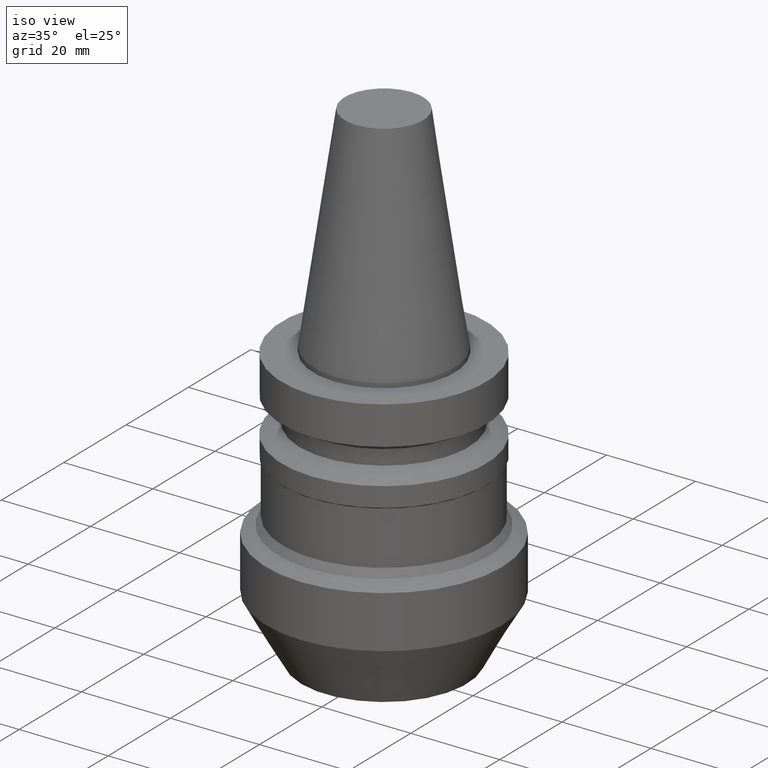
[diagram: clean part render]
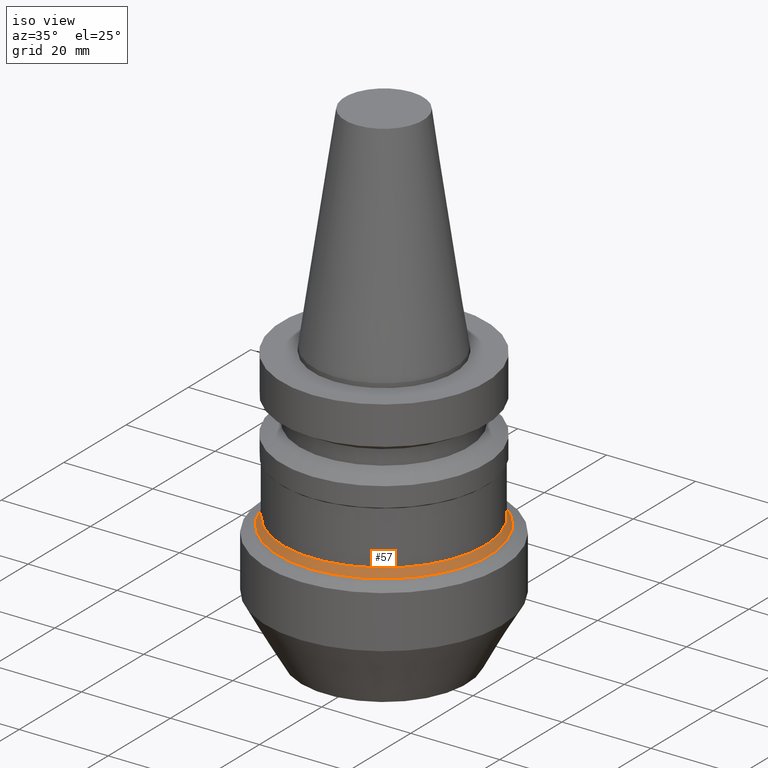
[diagram: same view with one face highlighted and labeled with its STEP entity id]
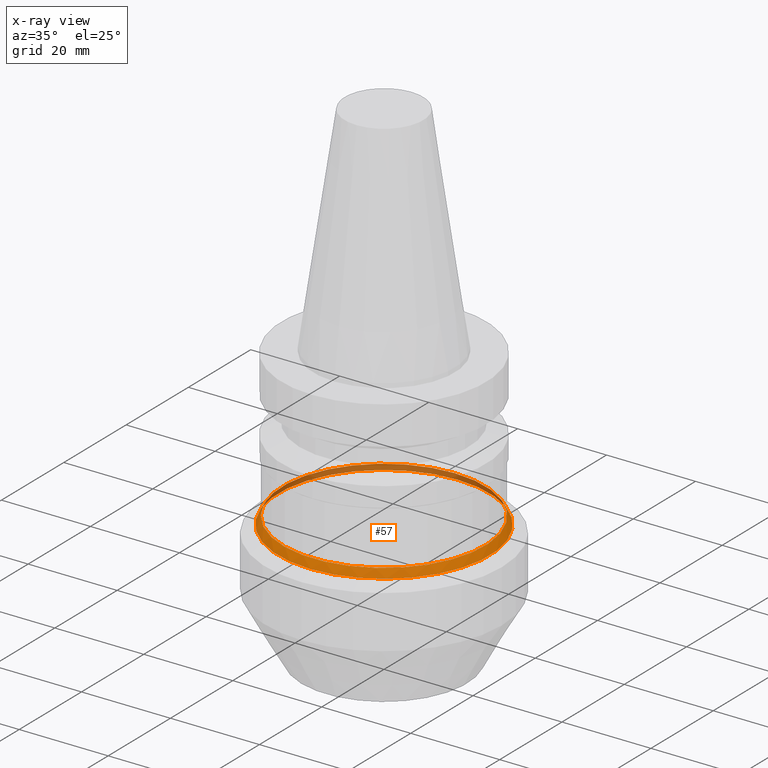
[diagram: x-ray of the same camera — body ghosted, the highlighted face saturated]
A machine part, iso view. The second image highlights one B-rep face of the part: STEP entity #57.
The next image is the same camera in x-ray: the body ghosted, the highlighted face saturated — about 29% of this face is hidden behind the body in this view.
In plain terms, the highlighted conical surface has half-angle 30 deg.
Its self-contained STEP definition (entity closure, byte-faithful):
#57=ADVANCED_FACE('Unnamed[1]',(#154,#155),#156,.T.);
#70=EDGE_CURVE('Unnamed[1]',#175,#175,#176,.T.);
#102=EDGE_CURVE('Unnamed[1]',#224,#224,#225,.T.);
#154=FACE_BOUND('',#287,.T.);
#155=FACE_BOUND('',#288,.T.);
#156=CONICAL_SURFACE('',#289,23.2000000000041,0.52359877559844);
#175=VERTEX_POINT('',#313);
#176=CIRCLE('',#314,22.7000000000041);
#224=VERTEX_POINT('',#374);
#225=CIRCLE('',#375,23.7000000000042);
#287=EDGE_LOOP('',(#443));
#288=EDGE_LOOP('',(#444));
#289=AXIS2_PLACEMENT_3D('',#445,#446,#447);
#313=CARTESIAN_POINT('',(2.10304305257173E-015,22.7000000000041,-34.3452994616235));
#314=AXIS2_PLACEMENT_3D('',#468,#469,#470);
#374=CARTESIAN_POINT('',(2.20910057644419E-015,23.7000000000042,-36.0773502691919));
#375=AXIS2_PLACEMENT_3D('',#520,#521,#522);
#443=ORIENTED_EDGE('',*,*,#102,.F.);
#444=ORIENTED_EDGE('',*,*,#70,.T.);
#445=CARTESIAN_POINT('',(2.15607181450796E-015,4.31214362901592E-015,-35.2113248654077));
#446=DIRECTION('',(6.12323399573677E-017,1.22464679914735E-016,-1.0));
#447=DIRECTION('',(-1.23259516440783E-032,1.0,1.22464679914735E-016));
#468=CARTESIAN_POINT('',(2.10304305257173E-015,4.20608610514345E-015,-34.3452994616235));
#469=DIRECTION('',(6.12323399573677E-017,1.22464679914735E-016,-1.0));
#470=DIRECTION('',(-1.23259516440783E-032,1.0,1.22464679914735E-016));
#520=CARTESIAN_POINT('',(2.20910057644419E-015,4.41820115288838E-015,-36.0773502691919));
#521=DIRECTION('',(6.12323399573677E-017,1.22464679914735E-016,-1.0));
#522=DIRECTION('',(-1.23259516440783E-032,1.0,1.22464679914735E-016));